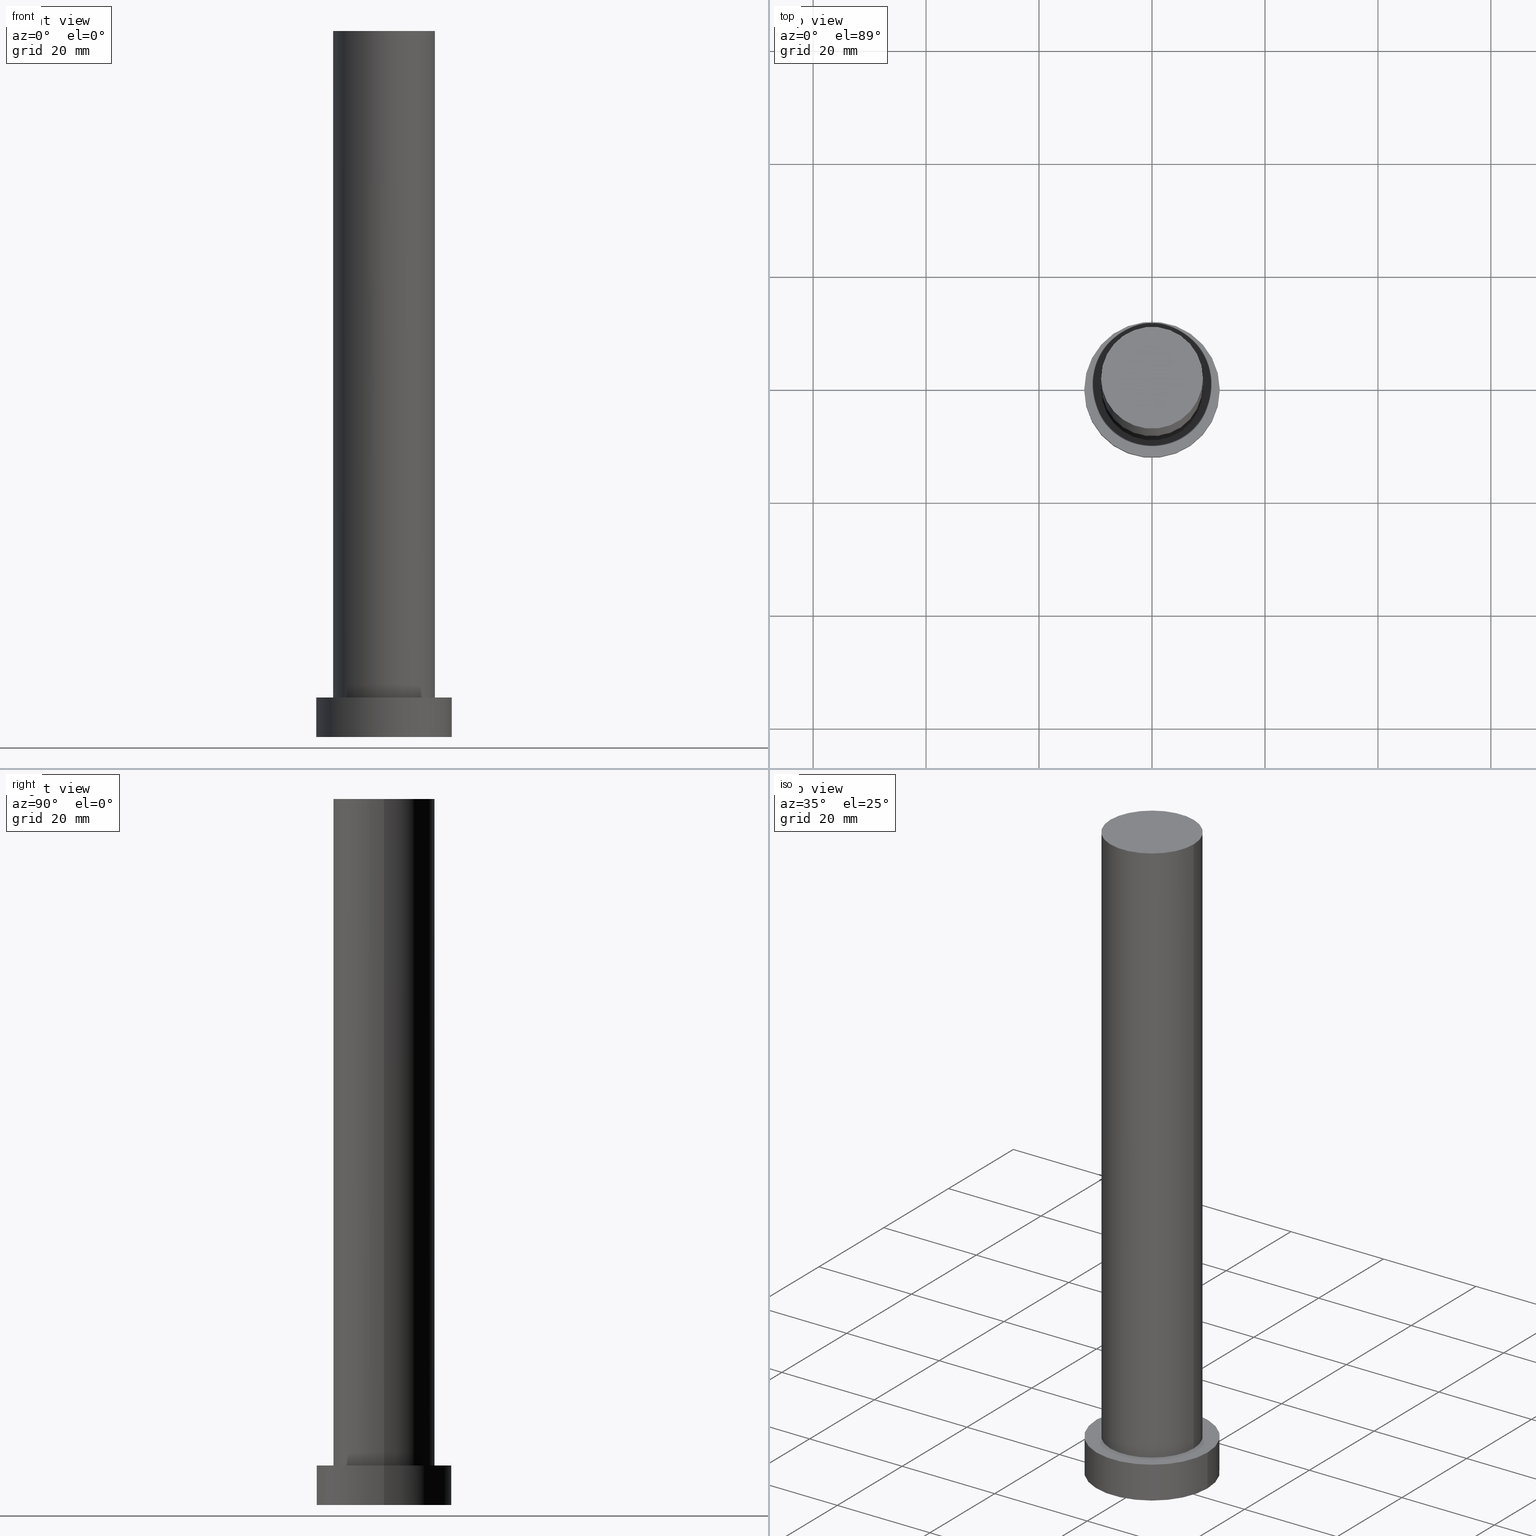
[diagram: canonical four-view strip — front | top / right | iso, engineering-drawing reading convention]
A machine part, canonical four-view strip (front | top / right | iso — engineering-drawing reading convention). The complete STEP part file that produces these views, byte-faithful:
ISO-10303-21;
HEADER;
FILE_DESCRIPTION (( 'STEP AP203' ),
    '1' );
FILE_NAME ('7879.STEP',
    '2023-02-13T07:36:25',
    ( '' ),
    ( '' ),
    'SwSTEP 2.0',
    'SolidWorks 2019',
    '' );
FILE_SCHEMA (( 'CONFIG_CONTROL_DESIGN' ));
ENDSEC;

DATA;
#1 = UNCERTAINTY_MEASURE_WITH_UNIT (LENGTH_MEASURE( 1.000000000000000082E-05 ), #45, 'distance_accuracy_value', 'NONE');
#2 = PERSON_AND_ORGANIZATION ( #210, #181 ) ;
#3 = AXIS2_PLACEMENT_3D ( 'NONE', #20, #223, #150 ) ;
#4 = AXIS2_PLACEMENT_3D ( 'NONE', #183, #78, #244 ) ;
#5 = PRODUCT_RELATED_PRODUCT_CATEGORY ( 'detail', '', ( #133 ) ) ;
#6 = EDGE_CURVE ( 'NONE', #165, #47, #76, .T. ) ;
#7 = DIRECTION ( 'NONE',  ( -0.000000000000000000, -0.000000000000000000, -1.000000000000000000 ) ) ;
#8 = APPROVAL_ROLE ( '' ) ;
#9 = APPROVAL ( #102, 'NEUR�EN�' ) ;
#10 = ORIENTED_EDGE ( 'NONE', *, *, #68, .T. ) ;
#11 = FACE_BOUND ( 'NONE', #110, .T. ) ;
#12 = PLANE ( 'NONE',  #126 ) ;
#13 = EDGE_LOOP ( 'NONE', ( #94, #211, #163, #121 ) ) ;
#14 = ORIENTED_EDGE ( 'NONE', *, *, #6, .F. ) ;
#15 = CARTESIAN_POINT ( 'NONE',  ( 0.000000000000000000, 0.000000000000000000, 7.000000000000000000 ) ) ;
#16 = AXIS2_PLACEMENT_3D ( 'NONE', #229, #213, #140 ) ;
#17 = DIRECTION ( 'NONE',  ( 1.000000000000000000, 0.000000000000000000, -0.000000000000000000 ) ) ;
#18 = AXIS2_PLACEMENT_3D ( 'NONE', #48, #7, #174 ) ;
#19 = CALENDAR_DATE ( 2023, 13, 2 ) ;
#20 = CARTESIAN_POINT ( 'NONE',  ( 0.000000000000000000, 0.000000000000000000, 125.0000000000000000 ) ) ;
#21 = CC_DESIGN_DATE_AND_TIME_ASSIGNMENT ( #35, #82, ( #51 ) ) ;
#22 = CIRCLE ( 'NONE', #98, 9.000000000000000000 ) ;
#23 = ADVANCED_FACE ( 'NONE', ( #168 ), #164, .T. ) ;
#24 = PERSON_AND_ORGANIZATION ( #210, #181 ) ;
#25 = EDGE_CURVE ( 'NONE', #47, #237, #92, .T. ) ;
#26 = DIRECTION ( 'NONE',  ( 0.000000000000000000, 0.000000000000000000, 1.000000000000000000 ) ) ;
#27 = ORIENTED_EDGE ( 'NONE', *, *, #101, .F. ) ;
#28 = CARTESIAN_POINT ( 'NONE',  ( -9.000000000000000000, 0.000000000000000000, 125.0000000000000000 ) ) ;
#29 = FACE_OUTER_BOUND ( 'NONE', #159, .T. ) ;
#30 = ADVANCED_FACE ( 'NONE', ( #188 ), #56, .T. ) ;
#31 = ORIENTED_EDGE ( 'NONE', *, *, #233, .T. ) ;
#32 = CIRCLE ( 'NONE', #104, 9.000000000000000000 ) ;
#33 = DIRECTION ( 'NONE',  ( -1.000000000000000000, 0.000000000000000000, 0.000000000000000000 ) ) ;
#34 = DIRECTION ( 'NONE',  ( 1.000000000000000000, 0.000000000000000000, 0.000000000000000000 ) ) ;
#35 = DATE_AND_TIME ( #19, #128 ) ;
#36 = DIRECTION ( 'NONE',  ( 1.000000000000000000, 0.000000000000000000, 0.000000000000000000 ) ) ;
#37 = ADVANCED_FACE ( 'NONE', ( #100 ), #12, .F. ) ;
#38 = CIRCLE ( 'NONE', #179, 12.00000000000000178 ) ;
#39 = APPROVAL_DATE_TIME ( #144, #9 ) ;
#40 = LINE ( 'NONE', #53, #157 ) ;
#41 = COORDINATED_UNIVERSAL_TIME_OFFSET ( 1, 0, .AHEAD. ) ;
#42 = DATE_AND_TIME ( #87, #67 ) ;
#43 =( GEOMETRIC_REPRESENTATION_CONTEXT ( 3 ) GLOBAL_UNCERTAINTY_ASSIGNED_CONTEXT ( ( #1 ) ) GLOBAL_UNIT_ASSIGNED_CONTEXT ( ( #45, #139, #72 ) ) REPRESENTATION_CONTEXT ( 'NONE', 'WORKASPACE' ) );
#44 = AXIS2_PLACEMENT_3D ( 'NONE', #66, #90, #200 ) ;
#45 =( LENGTH_UNIT ( ) NAMED_UNIT ( * ) SI_UNIT ( .MILLI., .METRE. ) );
#46 = EDGE_CURVE ( 'NONE', #47, #165, #32, .T. ) ;
#47 = VERTEX_POINT ( 'NONE', #215 ) ;
#48 = CARTESIAN_POINT ( 'NONE',  ( 0.000000000000000000, 0.000000000000000000, 7.000000000000000000 ) ) ;
#49 = VERTEX_POINT ( 'NONE', #122 ) ;
#50 = AXIS2_PLACEMENT_3D ( 'NONE', #222, #26, #236 ) ;
#51 = PRODUCT_DEFINITION ( 'NEZN�M�', '', #205, #125 ) ;
#52 = PERSON_AND_ORGANIZATION_ROLE ( 'design_owner' ) ;
#53 = CARTESIAN_POINT ( 'NONE',  ( 12.00000000000000178, 1.469576158976824144E-15, 7.000000000000000000 ) ) ;
#54 = CARTESIAN_POINT ( 'NONE',  ( 9.000000000000000000, 1.102182119232617714E-15, 125.0000000000000000 ) ) ;
#55 = COORDINATED_UNIVERSAL_TIME_OFFSET ( 1, 0, .AHEAD. ) ;
#56 = PLANE ( 'NONE',  #3 ) ;
#57 = APPROVAL ( #167, 'NEUR�EN�' ) ;
#58 = CALENDAR_DATE ( 2023, 13, 2 ) ;
#59 = ADVANCED_BREP_SHAPE_REPRESENTATION ( '7879', ( #250, #86 ), #43 ) ;
#60 = CC_DESIGN_PERSON_AND_ORGANIZATION_ASSIGNMENT ( #2, #127, ( #51 ) ) ;
#61 = APPROVAL_DATE_TIME ( #42, #152 ) ;
#62 = VECTOR ( 'NONE', #97, 1000.000000000000000 ) ;
#63 = CC_DESIGN_APPROVAL ( #57, ( #205 ) ) ;
#64 = CARTESIAN_POINT ( 'NONE',  ( -9.000000000000000000, 0.000000000000000000, 7.000000000000000000 ) ) ;
#65 = ORIENTED_EDGE ( 'NONE', *, *, #25, .T. ) ;
#66 = CARTESIAN_POINT ( 'NONE',  ( 0.000000000000000000, 0.000000000000000000, 7.000000000000000000 ) ) ;
#67 = LOCAL_TIME ( 8, 36, 25.00000000000000000, #84 ) ;
#68 = EDGE_CURVE ( 'NONE', #134, #95, #204, .T. ) ;
#69 = PERSON_AND_ORGANIZATION ( #210, #181 ) ;
#70 = PLANE ( 'NONE',  #50 ) ;
#71 = CARTESIAN_POINT ( 'NONE',  ( 0.000000000000000000, 0.000000000000000000, 7.000000000000000000 ) ) ;
#72 =( NAMED_UNIT ( * ) SI_UNIT ( $, .STERADIAN. ) SOLID_ANGLE_UNIT ( ) );
#73 = EDGE_LOOP ( 'NONE', ( #202, #142 ) ) ;
#74 = DIRECTION ( 'NONE',  ( 1.000000000000000000, 0.000000000000000000, 0.000000000000000000 ) ) ;
#75 = LOCAL_TIME ( 8, 36, 25.00000000000000000, #193 ) ;
#76 = CIRCLE ( 'NONE', #109, 9.000000000000000000 ) ;
#77 = CALENDAR_DATE ( 2023, 13, 2 ) ;
#78 = DIRECTION ( 'NONE',  ( 0.000000000000000000, 0.000000000000000000, 1.000000000000000000 ) ) ;
#79 = PERSON_AND_ORGANIZATION ( #210, #181 ) ;
#80 = DIRECTION ( 'NONE',  ( 0.000000000000000000, 0.000000000000000000, 1.000000000000000000 ) ) ;
#81 = ORIENTED_EDGE ( 'NONE', *, *, #118, .T. ) ;
#82 = DATE_TIME_ROLE ( 'creation_date' ) ;
#83 = EDGE_CURVE ( 'NONE', #240, #95, #192, .T. ) ;
#84 = COORDINATED_UNIVERSAL_TIME_OFFSET ( 1, 0, .AHEAD. ) ;
#85 = DIRECTION ( 'NONE',  ( -0.000000000000000000, -0.000000000000000000, -1.000000000000000000 ) ) ;
#86 = AXIS2_PLACEMENT_3D ( 'NONE', #255, #232, #123 ) ;
#87 = CALENDAR_DATE ( 2023, 13, 2 ) ;
#88 = FACE_OUTER_BOUND ( 'NONE', #169, .T. ) ;
#89 = EDGE_LOOP ( 'NONE', ( #137, #31 ) ) ;
#90 = DIRECTION ( 'NONE',  ( 0.000000000000000000, 0.000000000000000000, 1.000000000000000000 ) ) ;
#91 = APPLICATION_CONTEXT ( 'configuration controlled 3d designs of mechanical parts and assemblies' ) ;
#92 = LINE ( 'NONE', #54, #62 ) ;
#93 = DIRECTION ( 'NONE',  ( 0.000000000000000000, 0.000000000000000000, 1.000000000000000000 ) ) ;
#94 = ORIENTED_EDGE ( 'NONE', *, *, #233, .F. ) ;
#95 = VERTEX_POINT ( 'NONE', #214 ) ;
#96 = DATE_AND_TIME ( #58, #158 ) ;
#97 = DIRECTION ( 'NONE',  ( -0.000000000000000000, -0.000000000000000000, -1.000000000000000000 ) ) ;
#98 = AXIS2_PLACEMENT_3D ( 'NONE', #71, #119, #247 ) ;
#99 = MECHANICAL_CONTEXT ( 'NONE', #175, 'mechanical' ) ;
#100 = FACE_OUTER_BOUND ( 'NONE', #73, .T. ) ;
#101 = EDGE_CURVE ( 'NONE', #237, #161, #22, .T. ) ;
#102 = APPROVAL_STATUS ( 'not_yet_approved' ) ;
#103 = CC_DESIGN_APPROVAL ( #9, ( #51 ) ) ;
#104 = AXIS2_PLACEMENT_3D ( 'NONE', #249, #209, #74 ) ;
#105 = AXIS2_PLACEMENT_3D ( 'NONE', #220, #160, #114 ) ;
#106 = CALENDAR_DATE ( 2023, 13, 2 ) ;
#107 = APPROVAL_PERSON_ORGANIZATION ( #170, #57, #216 ) ;
#108 = PERSON_AND_ORGANIZATION ( #210, #181 ) ;
#109 = AXIS2_PLACEMENT_3D ( 'NONE', #186, #80, #231 ) ;
#110 = EDGE_LOOP ( 'NONE', ( #198, #27 ) ) ;
#111 = CYLINDRICAL_SURFACE ( 'NONE', #105, 9.000000000000000000 ) ;
#112 = EDGE_CURVE ( 'NONE', #49, #240, #40, .T. ) ;
#113 = ORIENTED_EDGE ( 'NONE', *, *, #206, .T. ) ;
#114 = DIRECTION ( 'NONE',  ( -1.000000000000000000, 0.000000000000000000, 0.000000000000000000 ) ) ;
#115 = ORIENTED_EDGE ( 'NONE', *, *, #25, .F. ) ;
#116 = LINE ( 'NONE', #28, #241 ) ;
#117 = CLOSED_SHELL ( 'NONE', ( #238, #23, #251, #254, #37, #190, #30 ) ) ;
#118 = EDGE_CURVE ( 'NONE', #95, #240, #234, .T. ) ;
#119 = DIRECTION ( 'NONE',  ( 0.000000000000000000, 0.000000000000000000, 1.000000000000000000 ) ) ;
#120 = CARTESIAN_POINT ( 'NONE',  ( 12.00000000000000178, 1.469576158976824144E-15, 0.000000000000000000 ) ) ;
#121 = ORIENTED_EDGE ( 'NONE', *, *, #68, .F. ) ;
#122 = CARTESIAN_POINT ( 'NONE',  ( 12.00000000000000178, 1.469576158976824144E-15, 7.000000000000000000 ) ) ;
#123 = DIRECTION ( 'NONE',  ( 1.000000000000000000, 0.000000000000000000, 0.000000000000000000 ) ) ;
#124 = DIRECTION ( 'NONE',  ( 0.000000000000000000, 0.000000000000000000, 1.000000000000000000 ) ) ;
#125 = DESIGN_CONTEXT ( 'detailed design', #91, 'design' ) ;
#126 = AXIS2_PLACEMENT_3D ( 'NONE', #201, #124, #17 ) ;
#127 = PERSON_AND_ORGANIZATION_ROLE ( 'creator' ) ;
#128 = LOCAL_TIME ( 8, 36, 25.00000000000000000, #55 ) ;
#129 = SECURITY_CLASSIFICATION_LEVEL ( 'unclassified' ) ;
#130 = CC_DESIGN_APPROVAL ( #152, ( #141 ) ) ;
#131 = PRODUCT_DEFINITION_SHAPE ( 'NONE', 'NONE',  #51 ) ;
#132 = APPROVAL_STATUS ( 'not_yet_approved' ) ;
#133 = PRODUCT ( '7879', '7879', '', ( #99 ) ) ;
#134 = VERTEX_POINT ( 'NONE', #203 ) ;
#135 = EDGE_CURVE ( 'NONE', #134, #49, #38, .T. ) ;
#136 = AXIS2_PLACEMENT_3D ( 'NONE', #143, #212, #34 ) ;
#137 = ORIENTED_EDGE ( 'NONE', *, *, #135, .T. ) ;
#138 = ORIENTED_EDGE ( 'NONE', *, *, #46, .T. ) ;
#139 =( NAMED_UNIT ( * ) PLANE_ANGLE_UNIT ( ) SI_UNIT ( $, .RADIAN. ) );
#140 = DIRECTION ( 'NONE',  ( -1.000000000000000000, 0.000000000000000000, 0.000000000000000000 ) ) ;
#141 = SECURITY_CLASSIFICATION ( '', '', #129 ) ;
#142 = ORIENTED_EDGE ( 'NONE', *, *, #83, .F. ) ;
#143 = CARTESIAN_POINT ( 'NONE',  ( 0.000000000000000000, 0.000000000000000000, 0.000000000000000000 ) ) ;
#144 = DATE_AND_TIME ( #77, #235 ) ;
#145 = DIRECTION ( 'NONE',  ( 0.000000000000000000, 0.000000000000000000, 1.000000000000000000 ) ) ;
#146 = APPROVAL_DATE_TIME ( #96, #57 ) ;
#147 = DIRECTION ( 'NONE',  ( -0.000000000000000000, -0.000000000000000000, -1.000000000000000000 ) ) ;
#148 = EDGE_CURVE ( 'NONE', #161, #237, #178, .T. ) ;
#149 = CC_DESIGN_SECURITY_CLASSIFICATION ( #141, ( #205 ) ) ;
#150 = DIRECTION ( 'NONE',  ( 1.000000000000000000, 0.000000000000000000, -0.000000000000000000 ) ) ;
#151 = SHAPE_DEFINITION_REPRESENTATION ( #131, #59 ) ;
#152 = APPROVAL ( #132, 'NEUR�EN�' ) ;
#153 = PERSON_AND_ORGANIZATION_ROLE ( 'classification_officer' ) ;
#154 = AXIS2_PLACEMENT_3D ( 'NONE', #239, #85, #33 ) ;
#155 = CC_DESIGN_PERSON_AND_ORGANIZATION_ASSIGNMENT ( #230, #52, ( #133 ) ) ;
#156 = ORIENTED_EDGE ( 'NONE', *, *, #101, .T. ) ;
#157 = VECTOR ( 'NONE', #224, 1000.000000000000000 ) ;
#158 = LOCAL_TIME ( 8, 36, 25.00000000000000000, #228 ) ;
#159 = EDGE_LOOP ( 'NONE', ( #253, #65, #156, #208 ) ) ;
#160 = DIRECTION ( 'NONE',  ( -0.000000000000000000, -0.000000000000000000, -1.000000000000000000 ) ) ;
#161 = VERTEX_POINT ( 'NONE', #64 ) ;
#162 = CARTESIAN_POINT ( 'NONE',  ( 0.000000000000000000, 0.000000000000000000, 7.000000000000000000 ) ) ;
#163 = ORIENTED_EDGE ( 'NONE', *, *, #83, .T. ) ;
#164 = CYLINDRICAL_SURFACE ( 'NONE', #16, 12.00000000000000178 ) ;
#165 = VERTEX_POINT ( 'NONE', #172 ) ;
#166 = CC_DESIGN_DATE_AND_TIME_ASSIGNMENT ( #219, #218, ( #141 ) ) ;
#167 = APPROVAL_STATUS ( 'not_yet_approved' ) ;
#168 = FACE_OUTER_BOUND ( 'NONE', #13, .T. ) ;
#169 = EDGE_LOOP ( 'NONE', ( #182, #177, #10, #81 ) ) ;
#170 = PERSON_AND_ORGANIZATION ( #210, #181 ) ;
#171 = APPROVAL_PERSON_ORGANIZATION ( #24, #152, #8 ) ;
#172 = CARTESIAN_POINT ( 'NONE',  ( -9.000000000000000000, 0.000000000000000000, 125.0000000000000000 ) ) ;
#173 = CC_DESIGN_PERSON_AND_ORGANIZATION_ASSIGNMENT ( #108, #153, ( #141 ) ) ;
#174 = DIRECTION ( 'NONE',  ( -1.000000000000000000, 0.000000000000000000, 0.000000000000000000 ) ) ;
#175 = APPLICATION_CONTEXT ( 'configuration controlled 3d designs of mechanical parts and assemblies' ) ;
#176 = ORIENTED_EDGE ( 'NONE', *, *, #148, .T. ) ;
#177 = ORIENTED_EDGE ( 'NONE', *, *, #135, .F. ) ;
#178 = CIRCLE ( 'NONE', #44, 9.000000000000000000 ) ;
#179 = AXIS2_PLACEMENT_3D ( 'NONE', #15, #145, #36 ) ;
#180 = FACE_OUTER_BOUND ( 'NONE', #89, .T. ) ;
#181 = ORGANIZATION ( 'NEUR�EN�', 'NEUR�EN�', '' ) ;
#182 = ORIENTED_EDGE ( 'NONE', *, *, #112, .F. ) ;
#183 = CARTESIAN_POINT ( 'NONE',  ( 0.000000000000000000, 0.000000000000000000, 0.000000000000000000 ) ) ;
#184 = CARTESIAN_POINT ( 'NONE',  ( 9.000000000000000000, 1.102182119232617714E-15, 7.000000000000000000 ) ) ;
#185 = EDGE_LOOP ( 'NONE', ( #115, #14, #113, #176 ) ) ;
#186 = CARTESIAN_POINT ( 'NONE',  ( 0.000000000000000000, 0.000000000000000000, 125.0000000000000000 ) ) ;
#187 = EDGE_LOOP ( 'NONE', ( #221, #138 ) ) ;
#188 = FACE_OUTER_BOUND ( 'NONE', #187, .T. ) ;
#189 = CARTESIAN_POINT ( 'NONE',  ( -12.00000000000000178, 0.000000000000000000, 7.000000000000000000 ) ) ;
#190 = ADVANCED_FACE ( 'NONE', ( #196 ), #243, .T. ) ;
#191 = APPLICATION_PROTOCOL_DEFINITION ( 'international standard', 'config_control_design', 1994, #175 ) ;
#192 = CIRCLE ( 'NONE', #4, 12.00000000000000178 ) ;
#193 = COORDINATED_UNIVERSAL_TIME_OFFSET ( 1, 0, .AHEAD. ) ;
#194 = AXIS2_PLACEMENT_3D ( 'NONE', #162, #93, #195 ) ;
#195 = DIRECTION ( 'NONE',  ( 1.000000000000000000, 0.000000000000000000, 0.000000000000000000 ) ) ;
#196 = FACE_OUTER_BOUND ( 'NONE', #185, .T. ) ;
#197 = CC_DESIGN_PERSON_AND_ORGANIZATION_ASSIGNMENT ( #69, #246, ( #205 ) ) ;
#198 = ORIENTED_EDGE ( 'NONE', *, *, #148, .F. ) ;
#199 = CYLINDRICAL_SURFACE ( 'NONE', #18, 12.00000000000000178 ) ;
#200 = DIRECTION ( 'NONE',  ( 1.000000000000000000, 0.000000000000000000, 0.000000000000000000 ) ) ;
#201 = CARTESIAN_POINT ( 'NONE',  ( 0.000000000000000000, 0.000000000000000000, 0.000000000000000000 ) ) ;
#202 = ORIENTED_EDGE ( 'NONE', *, *, #118, .F. ) ;
#203 = CARTESIAN_POINT ( 'NONE',  ( -12.00000000000000178, 0.000000000000000000, 7.000000000000000000 ) ) ;
#204 = LINE ( 'NONE', #189, #207 ) ;
#205 = PRODUCT_DEFINITION_FORMATION_WITH_SPECIFIED_SOURCE ( 'LIBOVOLN�', '', #133, .NOT_KNOWN. ) ;
#206 = EDGE_CURVE ( 'NONE', #165, #161, #116, .T. ) ;
#207 = VECTOR ( 'NONE', #147, 1000.000000000000000 ) ;
#208 = ORIENTED_EDGE ( 'NONE', *, *, #206, .F. ) ;
#209 = DIRECTION ( 'NONE',  ( 0.000000000000000000, 0.000000000000000000, 1.000000000000000000 ) ) ;
#210 = PERSON ( 'NEUR�EN�', 'NEUR�EN�', 'NEUR�EN�', ('NEUR�EN�'), ('NEUR�EN�'), ('NEUR�EN�') ) ;
#211 = ORIENTED_EDGE ( 'NONE', *, *, #112, .T. ) ;
#212 = DIRECTION ( 'NONE',  ( 0.000000000000000000, 0.000000000000000000, 1.000000000000000000 ) ) ;
#213 = DIRECTION ( 'NONE',  ( -0.000000000000000000, -0.000000000000000000, -1.000000000000000000 ) ) ;
#214 = CARTESIAN_POINT ( 'NONE',  ( -12.00000000000000178, 0.000000000000000000, 0.000000000000000000 ) ) ;
#215 = CARTESIAN_POINT ( 'NONE',  ( 9.000000000000000000, 1.102182119232617714E-15, 125.0000000000000000 ) ) ;
#216 = APPROVAL_ROLE ( '' ) ;
#217 = CIRCLE ( 'NONE', #194, 12.00000000000000178 ) ;
#218 = DATE_TIME_ROLE ( 'classification_date' ) ;
#219 = DATE_AND_TIME ( #106, #75 ) ;
#220 = CARTESIAN_POINT ( 'NONE',  ( 0.000000000000000000, 0.000000000000000000, 125.0000000000000000 ) ) ;
#221 = ORIENTED_EDGE ( 'NONE', *, *, #6, .T. ) ;
#222 = CARTESIAN_POINT ( 'NONE',  ( 0.000000000000000000, 0.000000000000000000, 7.000000000000000000 ) ) ;
#223 = DIRECTION ( 'NONE',  ( 0.000000000000000000, 0.000000000000000000, 1.000000000000000000 ) ) ;
#224 = DIRECTION ( 'NONE',  ( -0.000000000000000000, -0.000000000000000000, -1.000000000000000000 ) ) ;
#225 = APPROVAL_PERSON_ORGANIZATION ( #79, #9, #248 ) ;
#226 = PERSON_AND_ORGANIZATION ( #210, #181 ) ;
#227 = CC_DESIGN_PERSON_AND_ORGANIZATION_ASSIGNMENT ( #226, #242, ( #205 ) ) ;
#228 = COORDINATED_UNIVERSAL_TIME_OFFSET ( 1, 0, .AHEAD. ) ;
#229 = CARTESIAN_POINT ( 'NONE',  ( 0.000000000000000000, 0.000000000000000000, 7.000000000000000000 ) ) ;
#230 = PERSON_AND_ORGANIZATION ( #210, #181 ) ;
#231 = DIRECTION ( 'NONE',  ( 1.000000000000000000, 0.000000000000000000, 0.000000000000000000 ) ) ;
#232 = DIRECTION ( 'NONE',  ( 0.000000000000000000, 0.000000000000000000, 1.000000000000000000 ) ) ;
#233 = EDGE_CURVE ( 'NONE', #49, #134, #217, .T. ) ;
#234 = CIRCLE ( 'NONE', #136, 12.00000000000000178 ) ;
#235 = LOCAL_TIME ( 8, 36, 25.00000000000000000, #41 ) ;
#236 = DIRECTION ( 'NONE',  ( 1.000000000000000000, 0.000000000000000000, -0.000000000000000000 ) ) ;
#237 = VERTEX_POINT ( 'NONE', #184 ) ;
#238 = ADVANCED_FACE ( 'NONE', ( #29 ), #111, .T. ) ;
#239 = CARTESIAN_POINT ( 'NONE',  ( 0.000000000000000000, 0.000000000000000000, 125.0000000000000000 ) ) ;
#240 = VERTEX_POINT ( 'NONE', #120 ) ;
#241 = VECTOR ( 'NONE', #245, 1000.000000000000000 ) ;
#242 = PERSON_AND_ORGANIZATION_ROLE ( 'creator' ) ;
#243 = CYLINDRICAL_SURFACE ( 'NONE', #154, 9.000000000000000000 ) ;
#244 = DIRECTION ( 'NONE',  ( 1.000000000000000000, 0.000000000000000000, 0.000000000000000000 ) ) ;
#245 = DIRECTION ( 'NONE',  ( -0.000000000000000000, -0.000000000000000000, -1.000000000000000000 ) ) ;
#246 = PERSON_AND_ORGANIZATION_ROLE ( 'design_supplier' ) ;
#247 = DIRECTION ( 'NONE',  ( 1.000000000000000000, 0.000000000000000000, 0.000000000000000000 ) ) ;
#248 = APPROVAL_ROLE ( '' ) ;
#249 = CARTESIAN_POINT ( 'NONE',  ( 0.000000000000000000, 0.000000000000000000, 125.0000000000000000 ) ) ;
#250 = MANIFOLD_SOLID_BREP ( 'P�idat vysunut�m3', #117 ) ;
#251 = ADVANCED_FACE ( 'NONE', ( #88 ), #199, .T. ) ;
#252 = APPLICATION_PROTOCOL_DEFINITION ( 'international standard', 'config_control_design', 1994, #91 ) ;
#253 = ORIENTED_EDGE ( 'NONE', *, *, #46, .F. ) ;
#254 = ADVANCED_FACE ( 'NONE', ( #11, #180 ), #70, .T. ) ;
#255 = CARTESIAN_POINT ( 'NONE',  ( 0.000000000000000000, 0.000000000000000000, 0.000000000000000000 ) ) ;
ENDSEC;
END-ISO-10303-21;
